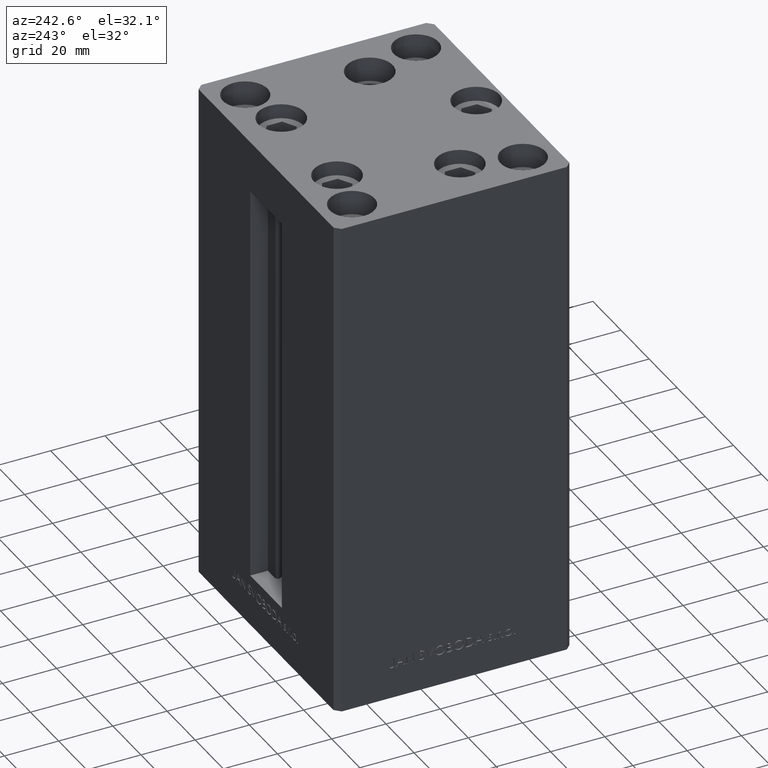
[diagram: clean part render]
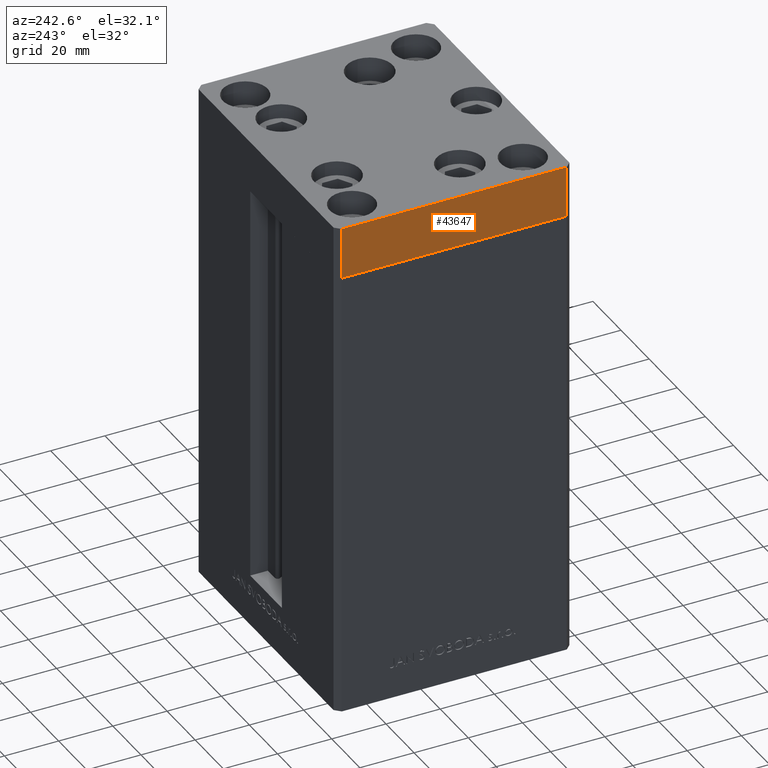
[diagram: same view with one face highlighted and labeled with its STEP entity id]
A machine part, auxiliary view. The second image highlights one B-rep face of the part: STEP entity #43647.
In plain terms, the highlighted planar face has unit normal (-1, -0, 0).
Its self-contained STEP definition (entity closure, byte-faithful):
#3204 = CARTESIAN_POINT ( 'NONE',  ( -50.00000000000000711, 41.49999999999995026, -19.00000000000000000 ) ) ;
#5546 = CARTESIAN_POINT ( 'NONE',  ( -50.00000000000000711, 41.49999999999995026, -19.00000000000000000 ) ) ;
#6283 = DIRECTION ( 'NONE',  ( 8.360113137237628665E-17, -1.000000000000000000, 0.000000000000000000 ) ) ;
#6427 = LINE ( 'NONE', #3204, #14557 ) ;
#7595 = PLANE ( 'NONE',  #37611 ) ;
#7642 = ORIENTED_EDGE ( 'NONE', *, *, #26581, .T. ) ;
#9343 = CARTESIAN_POINT ( 'NONE',  ( -50.00000000000000711, 41.49999999999995026, -19.00000000000000000 ) ) ;
#10061 = VERTEX_POINT ( 'NONE', #9343 ) ;
#11314 = FACE_OUTER_BOUND ( 'NONE', #40050, .T. ) ;
#11808 = DIRECTION ( 'NONE',  ( -1.000000000000000000, -8.360113137237628665E-17, 0.000000000000000000 ) ) ;
#14557 = VECTOR ( 'NONE', #33518, 1000.000000000000000 ) ;
#15053 = CARTESIAN_POINT ( 'NONE',  ( -50.00000000000000711, 41.49999999999995026, -19.00000000000000000 ) ) ;
#16188 = ORIENTED_EDGE ( 'NONE', *, *, #22753, .F. ) ;
#16272 = CARTESIAN_POINT ( 'NONE',  ( -50.00000000000000711, 41.49999999999995026, 0.000000000000000000 ) ) ;
#16515 = LINE ( 'NONE', #16272, #46700 ) ;
#19830 = ORIENTED_EDGE ( 'NONE', *, *, #28438, .T. ) ;
#21861 = CARTESIAN_POINT ( 'NONE',  ( -50.00000000000000000, -41.50000000000000000, -19.00000000000000000 ) ) ;
#22753 = EDGE_CURVE ( 'NONE', #43222, #28679, #16515, .T. ) ;
#23850 = VECTOR ( 'NONE', #6283, 1000.000000000000000 ) ;
#26581 = EDGE_CURVE ( 'NONE', #45289, #28679, #29270, .T. ) ;
#28438 = EDGE_CURVE ( 'NONE', #10061, #45289, #35871, .T. ) ;
#28679 = VERTEX_POINT ( 'NONE', #42309 ) ;
#29270 = LINE ( 'NONE', #33488, #45240 ) ;
#31125 = ORIENTED_EDGE ( 'NONE', *, *, #37524, .F. ) ;
#31447 = DIRECTION ( 'NONE',  ( 8.360113137237628665E-17, -1.000000000000000000, 0.000000000000000000 ) ) ;
#33488 = CARTESIAN_POINT ( 'NONE',  ( -50.00000000000000000, -41.50000000000000000, -19.00000000000000000 ) ) ;
#33518 = DIRECTION ( 'NONE',  ( 0.000000000000000000, 0.000000000000000000, 1.000000000000000000 ) ) ;
#35778 = CARTESIAN_POINT ( 'NONE',  ( -50.00000000000000711, 41.49999999999995026, 0.000000000000000000 ) ) ;
#35871 = LINE ( 'NONE', #5546, #23850 ) ;
#37524 = EDGE_CURVE ( 'NONE', #10061, #43222, #6427, .T. ) ;
#37611 = AXIS2_PLACEMENT_3D ( 'NONE', #15053, #11808, #46128 ) ;
#40050 = EDGE_LOOP ( 'NONE', ( #16188, #31125, #19830, #7642 ) ) ;
#40459 = DIRECTION ( 'NONE',  ( 0.000000000000000000, 0.000000000000000000, 1.000000000000000000 ) ) ;
#42309 = CARTESIAN_POINT ( 'NONE',  ( -50.00000000000000000, -41.50000000000000000, 0.000000000000000000 ) ) ;
#43222 = VERTEX_POINT ( 'NONE', #35778 ) ;
#43647 = ADVANCED_FACE ( 'NONE', ( #11314 ), #7595, .T. ) ;
#45240 = VECTOR ( 'NONE', #40459, 1000.000000000000000 ) ;
#45289 = VERTEX_POINT ( 'NONE', #21861 ) ;
#46128 = DIRECTION ( 'NONE',  ( 8.360113137237628665E-17, -1.000000000000000000, 0.000000000000000000 ) ) ;
#46700 = VECTOR ( 'NONE', #31447, 1000.000000000000000 ) ;